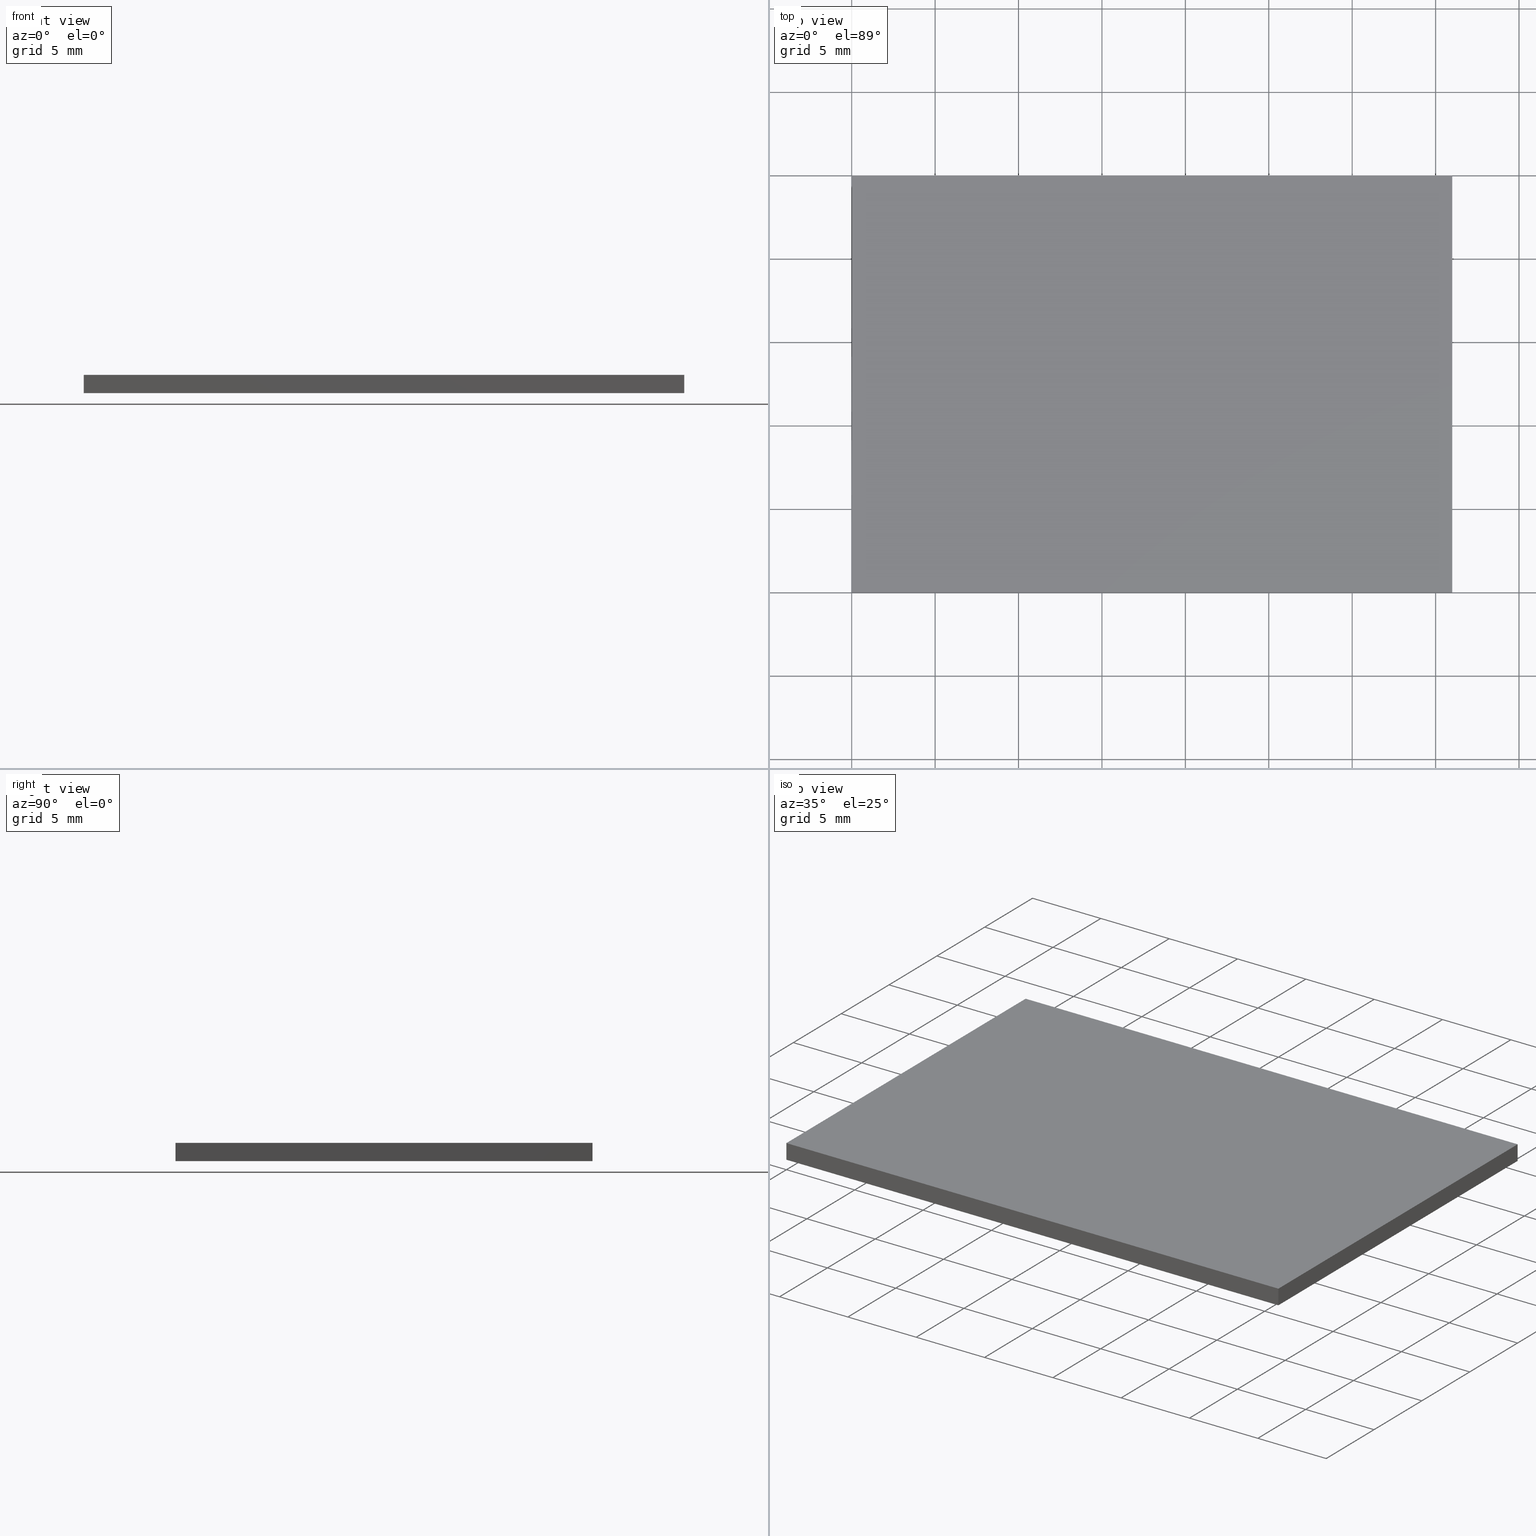
[diagram: canonical four-view strip — front | top / right | iso, engineering-drawing reading convention]
A machine part, canonical four-view strip (front | top / right | iso — engineering-drawing reading convention). The complete STEP part file that produces these views, byte-faithful:
ISO-10303-21;
HEADER;
FILE_DESCRIPTION (( 'STEP AP214' ),
    '1' );
FILE_NAME ('GDMLPH-410-25x36.STEP',
    '2024-08-13T06:00:57',
    ( 'Windows User' ),
    ( 'P R C' ),
    'SwSTEP 2.0',
    'SolidWorks 2022',
    '' );
FILE_SCHEMA (( 'AUTOMOTIVE_DESIGN' ));
ENDSEC;

DATA;
#1 =( LENGTH_UNIT ( ) NAMED_UNIT ( * ) SI_UNIT ( .MILLI., .METRE. ) );
#2 = ORIENTED_EDGE ( 'NONE', *, *, #132, .T. ) ;
#3 = APPLICATION_PROTOCOL_DEFINITION ( 'draft international standard', 'automotive_design', 1998, #107 ) ;
#4 = ORIENTED_EDGE ( 'NONE', *, *, #72, .F. ) ;
#5 = EDGE_CURVE ( 'NONE', #89, #59, #189, .T. ) ;
#6 = PLANE ( 'NONE',  #95 ) ;
#7 = CARTESIAN_POINT ( 'NONE',  ( 0.000000000000000000, 0.000000000000000000, 0.000000000000000000 ) ) ;
#8 = CARTESIAN_POINT ( 'NONE',  ( 0.000000000000000000, 0.000000000000000000, 0.000000000000000000 ) ) ;
#9 = FILL_AREA_STYLE ('',( #81 ) ) ;
#10 = PLANE ( 'NONE',  #70 ) ;
#11 = EDGE_LOOP ( 'NONE', ( #175, #4, #33, #118 ) ) ;
#12 = VECTOR ( 'NONE', #79, 1000.000000000000000 ) ;
#13 = ORIENTED_EDGE ( 'NONE', *, *, #72, .T. ) ;
#14 = ADVANCED_FACE ( 'NONE', ( #154 ), #188, .F. ) ;
#15 = ORIENTED_EDGE ( 'NONE', *, *, #182, .T. ) ;
#16 = LINE ( 'NONE', #145, #139 ) ;
#17 = CARTESIAN_POINT ( 'NONE',  ( 0.000000000000000000, 0.000000000000000000, 0.000000000000000000 ) ) ;
#18 = VECTOR ( 'NONE', #22, 1000.000000000000000 ) ;
#19 = DIRECTION ( 'NONE',  ( 1.000000000000000000, 0.000000000000000000, 0.000000000000000000 ) ) ;
#20 = VERTEX_POINT ( 'NONE', #109 ) ;
#21 = DIRECTION ( 'NONE',  ( -0.000000000000000000, -0.000000000000000000, -1.000000000000000000 ) ) ;
#22 = DIRECTION ( 'NONE',  ( -0.000000000000000000, -0.000000000000000000, -1.000000000000000000 ) ) ;
#23 = EDGE_CURVE ( 'NONE', #202, #157, #91, .T. ) ;
#24 = LINE ( 'NONE', #8, #113 ) ;
#25 = DIRECTION ( 'NONE',  ( 0.000000000000000000, 0.000000000000000000, -1.000000000000000000 ) ) ;
#26 = DIRECTION ( 'NONE',  ( -1.000000000000000000, 0.000000000000000000, 0.000000000000000000 ) ) ;
#27 = ORIENTED_EDGE ( 'NONE', *, *, #149, .T. ) ;
#28 = AXIS2_PLACEMENT_3D ( 'NONE', #57, #32, #124 ) ;
#29 = FILL_AREA_STYLE_COLOUR ( '', #58 ) ;
#30 = DIRECTION ( 'NONE',  ( 0.000000000000000000, 1.000000000000000000, 0.000000000000000000 ) ) ;
#31 = VERTEX_POINT ( 'NONE', #17 ) ;
#32 = DIRECTION ( 'NONE',  ( 0.000000000000000000, 1.000000000000000000, 0.000000000000000000 ) ) ;
#33 = ORIENTED_EDGE ( 'NONE', *, *, #182, .F. ) ;
#34 = CARTESIAN_POINT ( 'NONE',  ( 0.000000000000000000, 0.000000000000000000, 1.100000000000000089 ) ) ;
#35 = SURFACE_SIDE_STYLE ('',( #115 ) ) ;
#36 = VECTOR ( 'NONE', #158, 1000.000000000000000 ) ;
#37 = DIRECTION ( 'NONE',  ( -0.000000000000000000, -0.000000000000000000, -1.000000000000000000 ) ) ;
#38 = DIRECTION ( 'NONE',  ( -1.000000000000000000, 0.000000000000000000, -0.000000000000000000 ) ) ;
#39 = EDGE_CURVE ( 'NONE', #167, #202, #16, .T. ) ;
#40 = PLANE ( 'NONE',  #90 ) ;
#41 = PRESENTATION_LAYER_ASSIGNMENT (  '', '', ( #55 ) ) ;
#42 = LINE ( 'NONE', #117, #141 ) ;
#43 = VECTOR ( 'NONE', #138, 1000.000000000000000 ) ;
#44 = ORIENTED_EDGE ( 'NONE', *, *, #97, .T. ) ;
#45 = VERTEX_POINT ( 'NONE', #197 ) ;
#46 = ORIENTED_EDGE ( 'NONE', *, *, #97, .F. ) ;
#47 = PRODUCT_DEFINITION_SHAPE ( 'NONE', 'NONE',  #193 ) ;
#48 = DIRECTION ( 'NONE',  ( -1.000000000000000000, 0.000000000000000000, -0.000000000000000000 ) ) ;
#49 = LINE ( 'NONE', #142, #186 ) ;
#50 =( NAMED_UNIT ( * ) PLANE_ANGLE_UNIT ( ) SI_UNIT ( $, .RADIAN. ) );
#51 = ORIENTED_EDGE ( 'NONE', *, *, #56, .F. ) ;
#52 = ORIENTED_EDGE ( 'NONE', *, *, #5, .F. ) ;
#53 = EDGE_CURVE ( 'NONE', #31, #157, #24, .T. ) ;
#54 = ADVANCED_BREP_SHAPE_REPRESENTATION ( 'GDMLPH-410-25x36', ( #162, #174 ), #150 ) ;
#55 = STYLED_ITEM ( 'NONE', ( #65 ), #162 ) ;
#56 = EDGE_CURVE ( 'NONE', #89, #45, #78, .T. ) ;
#57 = CARTESIAN_POINT ( 'NONE',  ( 0.000000000000000000, 0.000000000000000000, 1.100000000000000089 ) ) ;
#58 = COLOUR_RGB ( '',1.000000000000000000, 1.000000000000000000, 1.000000000000000000 ) ;
#59 = VERTEX_POINT ( 'NONE', #80 ) ;
#60 = PLANE ( 'NONE',  #196 ) ;
#61 = DIRECTION ( 'NONE',  ( 0.000000000000000000, -1.000000000000000000, 0.000000000000000000 ) ) ;
#62 =( GEOMETRIC_REPRESENTATION_CONTEXT ( 3 ) GLOBAL_UNCERTAINTY_ASSIGNED_CONTEXT ( ( #185 ) ) GLOBAL_UNIT_ASSIGNED_CONTEXT ( ( #1, #104, #201 ) ) REPRESENTATION_CONTEXT ( 'NONE', 'WORKASPACE' ) );
#63 = CARTESIAN_POINT ( 'NONE',  ( 36.00000000000000000, 25.00000000000000000, 1.100000000000000089 ) ) ;
#64 = MECHANICAL_DESIGN_GEOMETRIC_PRESENTATION_REPRESENTATION (  '', ( #55 ), #100 ) ;
#65 = PRESENTATION_STYLE_ASSIGNMENT (( #94 ) ) ;
#66 = ADVANCED_FACE ( 'NONE', ( #82 ), #10, .F. ) ;
#67 = CARTESIAN_POINT ( 'NONE',  ( 0.000000000000000000, 0.000000000000000000, 1.100000000000000089 ) ) ;
#68 = CARTESIAN_POINT ( 'NONE',  ( 0.000000000000000000, 0.000000000000000000, 1.100000000000000089 ) ) ;
#69 = EDGE_LOOP ( 'NONE', ( #77, #46, #131, #2 ) ) ;
#70 = AXIS2_PLACEMENT_3D ( 'NONE', #146, #178, #198 ) ;
#71 = ORIENTED_EDGE ( 'NONE', *, *, #56, .T. ) ;
#72 = EDGE_CURVE ( 'NONE', #45, #20, #49, .T. ) ;
#73 = SURFACE_STYLE_USAGE ( .BOTH. , #183 ) ;
#74 =( NAMED_UNIT ( * ) PLANE_ANGLE_UNIT ( ) SI_UNIT ( $, .RADIAN. ) );
#75 = PRODUCT_DEFINITION_FORMATION_WITH_SPECIFIED_SOURCE ( '�κ�', '', #192, .NOT_KNOWN. ) ;
#76 = ADVANCED_FACE ( 'NONE', ( #110 ), #6, .T. ) ;
#77 = ORIENTED_EDGE ( 'NONE', *, *, #170, .T. ) ;
#78 = LINE ( 'NONE', #161, #159 ) ;
#79 = DIRECTION ( 'NONE',  ( -0.000000000000000000, -1.000000000000000000, -0.000000000000000000 ) ) ;
#80 = CARTESIAN_POINT ( 'NONE',  ( 0.000000000000000000, 25.00000000000000000, 1.100000000000000089 ) ) ;
#81 = FILL_AREA_STYLE_COLOUR ( '', #135 ) ;
#82 = FACE_OUTER_BOUND ( 'NONE', #69, .T. ) ;
#83 = UNCERTAINTY_MEASURE_WITH_UNIT (LENGTH_MEASURE( 1.000000000000000082E-05 ), #116, 'distance_accuracy_value', 'NONE');
#84 =( NAMED_UNIT ( * ) SI_UNIT ( $, .STERADIAN. ) SOLID_ANGLE_UNIT ( ) );
#85 = APPLICATION_CONTEXT ( 'automotive_design' ) ;
#86 = SURFACE_STYLE_FILL_AREA ( #169 ) ;
#87 = VECTOR ( 'NONE', #151, 1000.000000000000000 ) ;
#88 = CARTESIAN_POINT ( 'NONE',  ( 36.00000000000000000, 0.000000000000000000, 1.100000000000000089 ) ) ;
#89 = VERTEX_POINT ( 'NONE', #63 ) ;
#90 = AXIS2_PLACEMENT_3D ( 'NONE', #101, #26, #166 ) ;
#91 = LINE ( 'NONE', #88, #87 ) ;
#92 = ADVANCED_FACE ( 'NONE', ( #112 ), #60, .F. ) ;
#93 = CARTESIAN_POINT ( 'NONE',  ( 36.00000000000000000, 0.000000000000000000, 1.100000000000000089 ) ) ;
#94 = SURFACE_STYLE_USAGE ( .BOTH. , #35 ) ;
#95 = AXIS2_PLACEMENT_3D ( 'NONE', #7, #143, #48 ) ;
#96 = DIRECTION ( 'NONE',  ( 1.000000000000000000, 0.000000000000000000, 0.000000000000000000 ) ) ;
#97 = EDGE_CURVE ( 'NONE', #167, #31, #177, .T. ) ;
#98 = FACE_OUTER_BOUND ( 'NONE', #191, .T. ) ;
#99 =( LENGTH_UNIT ( ) NAMED_UNIT ( * ) SI_UNIT ( .MILLI., .METRE. ) );
#100 =( GEOMETRIC_REPRESENTATION_CONTEXT ( 3 ) GLOBAL_UNCERTAINTY_ASSIGNED_CONTEXT ( ( #181 ) ) GLOBAL_UNIT_ASSIGNED_CONTEXT ( ( #99, #74, #168 ) ) REPRESENTATION_CONTEXT ( 'NONE', 'WORKASPACE' ) );
#101 = CARTESIAN_POINT ( 'NONE',  ( 36.00000000000000000, 0.000000000000000000, 1.100000000000000089 ) ) ;
#102 = CARTESIAN_POINT ( 'NONE',  ( 0.000000000000000000, 0.000000000000000000, 0.000000000000000000 ) ) ;
#103 = ORIENTED_EDGE ( 'NONE', *, *, #132, .F. ) ;
#104 =( NAMED_UNIT ( * ) PLANE_ANGLE_UNIT ( ) SI_UNIT ( $, .RADIAN. ) );
#105 = ORIENTED_EDGE ( 'NONE', *, *, #23, .T. ) ;
#106 = ORIENTED_EDGE ( 'NONE', *, *, #119, .T. ) ;
#107 = APPLICATION_CONTEXT ( 'automotive_design' ) ;
#108 = CARTESIAN_POINT ( 'NONE',  ( 0.000000000000000000, 25.00000000000000000, 1.100000000000000089 ) ) ;
#109 = CARTESIAN_POINT ( 'NONE',  ( 0.000000000000000000, 25.00000000000000000, 0.000000000000000000 ) ) ;
#110 = FACE_OUTER_BOUND ( 'NONE', #11, .T. ) ;
#111 = LINE ( 'NONE', #93, #36 ) ;
#112 = FACE_OUTER_BOUND ( 'NONE', #137, .T. ) ;
#113 = VECTOR ( 'NONE', #127, 1000.000000000000000 ) ;
#114 = LINE ( 'NONE', #128, #164 ) ;
#115 = SURFACE_STYLE_FILL_AREA ( #9 ) ;
#116 =( LENGTH_UNIT ( ) NAMED_UNIT ( * ) SI_UNIT ( .MILLI., .METRE. ) );
#117 = CARTESIAN_POINT ( 'NONE',  ( 36.00000000000000000, 0.000000000000000000, 0.000000000000000000 ) ) ;
#118 = ORIENTED_EDGE ( 'NONE', *, *, #53, .F. ) ;
#119 = EDGE_CURVE ( 'NONE', #59, #167, #195, .T. ) ;
#120 = ORIENTED_EDGE ( 'NONE', *, *, #53, .T. ) ;
#121 = ORIENTED_EDGE ( 'NONE', *, *, #5, .T. ) ;
#122 = PRODUCT_CONTEXT ( 'NONE', #85, 'mechanical' ) ;
#123 = ORIENTED_EDGE ( 'NONE', *, *, #149, .F. ) ;
#124 = DIRECTION ( 'NONE',  ( 0.000000000000000000, -0.000000000000000000, 1.000000000000000000 ) ) ;
#125 = AXIS2_PLACEMENT_3D ( 'NONE', #163, #61, #129 ) ;
#126 = PLANE ( 'NONE',  #125 ) ;
#127 = DIRECTION ( 'NONE',  ( 1.000000000000000000, 0.000000000000000000, 0.000000000000000000 ) ) ;
#128 = CARTESIAN_POINT ( 'NONE',  ( 0.000000000000000000, 25.00000000000000000, 1.100000000000000089 ) ) ;
#129 = DIRECTION ( 'NONE',  ( 0.000000000000000000, -0.000000000000000000, -1.000000000000000000 ) ) ;
#130 = PRESENTATION_STYLE_ASSIGNMENT (( #73 ) ) ;
#131 = ORIENTED_EDGE ( 'NONE', *, *, #119, .F. ) ;
#132 = EDGE_CURVE ( 'NONE', #59, #20, #114, .T. ) ;
#133 = CARTESIAN_POINT ( 'NONE',  ( 36.00000000000000000, 0.000000000000000000, 1.100000000000000089 ) ) ;
#134 = PRESENTATION_LAYER_ASSIGNMENT (  '', '', ( #190 ) ) ;
#135 = COLOUR_RGB ( '',1.000000000000000000, 1.000000000000000000, 1.000000000000000000 ) ;
#136 = SHAPE_DEFINITION_REPRESENTATION ( #47, #54 ) ;
#137 = EDGE_LOOP ( 'NONE', ( #106, #140, #27, #121 ) ) ;
#138 = DIRECTION ( 'NONE',  ( -1.000000000000000000, -0.000000000000000000, -0.000000000000000000 ) ) ;
#139 = VECTOR ( 'NONE', #96, 1000.000000000000000 ) ;
#140 = ORIENTED_EDGE ( 'NONE', *, *, #39, .T. ) ;
#141 = VECTOR ( 'NONE', #30, 1000.000000000000000 ) ;
#142 = CARTESIAN_POINT ( 'NONE',  ( 0.000000000000000000, 25.00000000000000000, 0.000000000000000000 ) ) ;
#143 = DIRECTION ( 'NONE',  ( 0.000000000000000000, 0.000000000000000000, -1.000000000000000000 ) ) ;
#144 = ADVANCED_FACE ( 'NONE', ( #98 ), #126, .F. ) ;
#145 = CARTESIAN_POINT ( 'NONE',  ( 0.000000000000000000, 0.000000000000000000, 1.100000000000000089 ) ) ;
#146 = CARTESIAN_POINT ( 'NONE',  ( 0.000000000000000000, 0.000000000000000000, 1.100000000000000089 ) ) ;
#147 = VECTOR ( 'NONE', #180, 1000.000000000000000 ) ;
#148 = APPLICATION_PROTOCOL_DEFINITION ( 'draft international standard', 'automotive_design', 1998, #85 ) ;
#149 = EDGE_CURVE ( 'NONE', #202, #89, #111, .T. ) ;
#150 =( GEOMETRIC_REPRESENTATION_CONTEXT ( 3 ) GLOBAL_UNCERTAINTY_ASSIGNED_CONTEXT ( ( #83 ) ) GLOBAL_UNIT_ASSIGNED_CONTEXT ( ( #116, #50, #84 ) ) REPRESENTATION_CONTEXT ( 'NONE', 'WORKASPACE' ) );
#151 = DIRECTION ( 'NONE',  ( -0.000000000000000000, -0.000000000000000000, -1.000000000000000000 ) ) ;
#152 = PRODUCT_RELATED_PRODUCT_CATEGORY ( 'part', '', ( #192 ) ) ;
#153 = EDGE_LOOP ( 'NONE', ( #15, #51, #123, #105 ) ) ;
#154 = FACE_OUTER_BOUND ( 'NONE', #173, .T. ) ;
#155 = CLOSED_SHELL ( 'NONE', ( #66, #14, #187, #144, #92, #76 ) ) ;
#156 = CARTESIAN_POINT ( 'NONE',  ( 0.000000000000000000, 0.000000000000000000, 0.000000000000000000 ) ) ;
#157 = VERTEX_POINT ( 'NONE', #179 ) ;
#158 = DIRECTION ( 'NONE',  ( 0.000000000000000000, 1.000000000000000000, 0.000000000000000000 ) ) ;
#159 = VECTOR ( 'NONE', #21, 1000.000000000000000 ) ;
#160 = CARTESIAN_POINT ( 'NONE',  ( 0.000000000000000000, 0.000000000000000000, 1.100000000000000089 ) ) ;
#161 = CARTESIAN_POINT ( 'NONE',  ( 36.00000000000000000, 25.00000000000000000, 1.100000000000000089 ) ) ;
#162 = MANIFOLD_SOLID_BREP ( '͹̨-����1', #155 ) ;
#163 = CARTESIAN_POINT ( 'NONE',  ( 0.000000000000000000, 25.00000000000000000, 1.100000000000000089 ) ) ;
#164 = VECTOR ( 'NONE', #37, 1000.000000000000000 ) ;
#165 = PRODUCT_DEFINITION_CONTEXT ( 'detailed design', #107, 'design' ) ;
#166 = DIRECTION ( 'NONE',  ( 0.000000000000000000, 0.000000000000000000, 1.000000000000000000 ) ) ;
#167 = VERTEX_POINT ( 'NONE', #68 ) ;
#168 =( NAMED_UNIT ( * ) SI_UNIT ( $, .STERADIAN. ) SOLID_ANGLE_UNIT ( ) );
#169 = FILL_AREA_STYLE ('',( #29 ) ) ;
#170 = EDGE_CURVE ( 'NONE', #20, #31, #176, .T. ) ;
#171 = DIRECTION ( 'NONE',  ( 0.000000000000000000, 0.000000000000000000, 1.000000000000000000 ) ) ;
#172 = ORIENTED_EDGE ( 'NONE', *, *, #23, .F. ) ;
#173 = EDGE_LOOP ( 'NONE', ( #120, #172, #184, #44 ) ) ;
#174 = AXIS2_PLACEMENT_3D ( 'NONE', #156, #171, #19 ) ;
#175 = ORIENTED_EDGE ( 'NONE', *, *, #170, .F. ) ;
#176 = LINE ( 'NONE', #102, #147 ) ;
#177 = LINE ( 'NONE', #67, #18 ) ;
#178 = DIRECTION ( 'NONE',  ( 1.000000000000000000, 0.000000000000000000, 0.000000000000000000 ) ) ;
#179 = CARTESIAN_POINT ( 'NONE',  ( 36.00000000000000000, 0.000000000000000000, 0.000000000000000000 ) ) ;
#180 = DIRECTION ( 'NONE',  ( -0.000000000000000000, -1.000000000000000000, -0.000000000000000000 ) ) ;
#181 = UNCERTAINTY_MEASURE_WITH_UNIT (LENGTH_MEASURE( 1.000000000000000082E-05 ), #99, 'distance_accuracy_value', 'NONE');
#182 = EDGE_CURVE ( 'NONE', #157, #45, #42, .T. ) ;
#183 = SURFACE_SIDE_STYLE ('',( #86 ) ) ;
#184 = ORIENTED_EDGE ( 'NONE', *, *, #39, .F. ) ;
#185 = UNCERTAINTY_MEASURE_WITH_UNIT (LENGTH_MEASURE( 1.000000000000000082E-05 ), #1, 'distance_accuracy_value', 'NONE');
#186 = VECTOR ( 'NONE', #194, 1000.000000000000000 ) ;
#187 = ADVANCED_FACE ( 'NONE', ( #199 ), #40, .F. ) ;
#188 = PLANE ( 'NONE',  #28 ) ;
#189 = LINE ( 'NONE', #108, #43 ) ;
#190 = STYLED_ITEM ( 'NONE', ( #130 ), #54 ) ;
#191 = EDGE_LOOP ( 'NONE', ( #13, #103, #52, #71 ) ) ;
#192 = PRODUCT ( 'GDMLPH-410-25x36', 'GDMLPH-410-25x36', '', ( #122 ) ) ;
#193 = PRODUCT_DEFINITION ( 'δ֪', '', #75, #165 ) ;
#194 = DIRECTION ( 'NONE',  ( -1.000000000000000000, -0.000000000000000000, -0.000000000000000000 ) ) ;
#195 = LINE ( 'NONE', #34, #12 ) ;
#196 = AXIS2_PLACEMENT_3D ( 'NONE', #160, #25, #38 ) ;
#197 = CARTESIAN_POINT ( 'NONE',  ( 36.00000000000000000, 25.00000000000000000, 0.000000000000000000 ) ) ;
#198 = DIRECTION ( 'NONE',  ( 0.000000000000000000, 0.000000000000000000, -1.000000000000000000 ) ) ;
#199 = FACE_OUTER_BOUND ( 'NONE', #153, .T. ) ;
#200 = MECHANICAL_DESIGN_GEOMETRIC_PRESENTATION_REPRESENTATION (  '', ( #190 ), #62 ) ;
#201 =( NAMED_UNIT ( * ) SI_UNIT ( $, .STERADIAN. ) SOLID_ANGLE_UNIT ( ) );
#202 = VERTEX_POINT ( 'NONE', #133 ) ;
ENDSEC;
END-ISO-10303-21;
